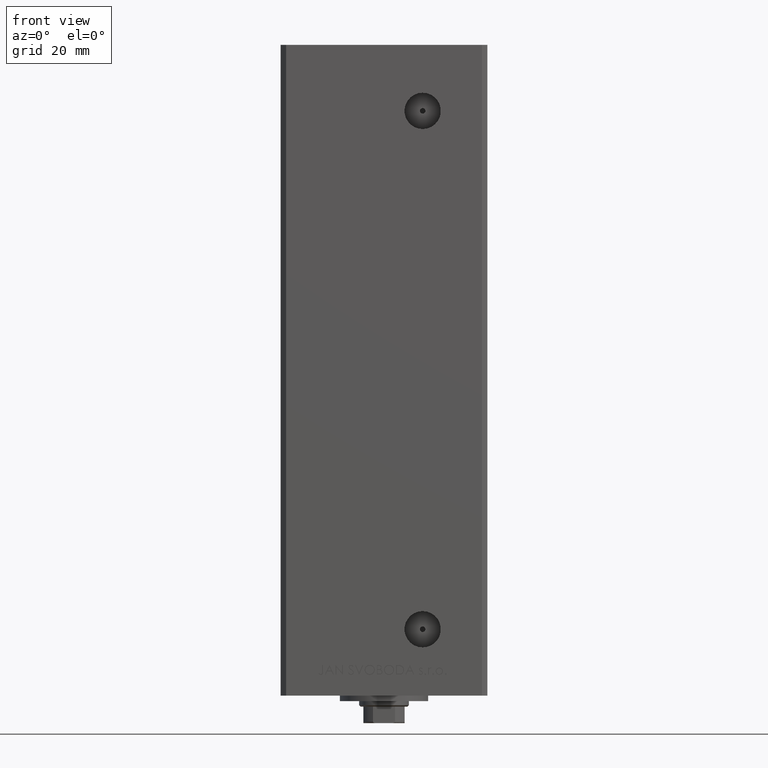
[diagram: clean part render]
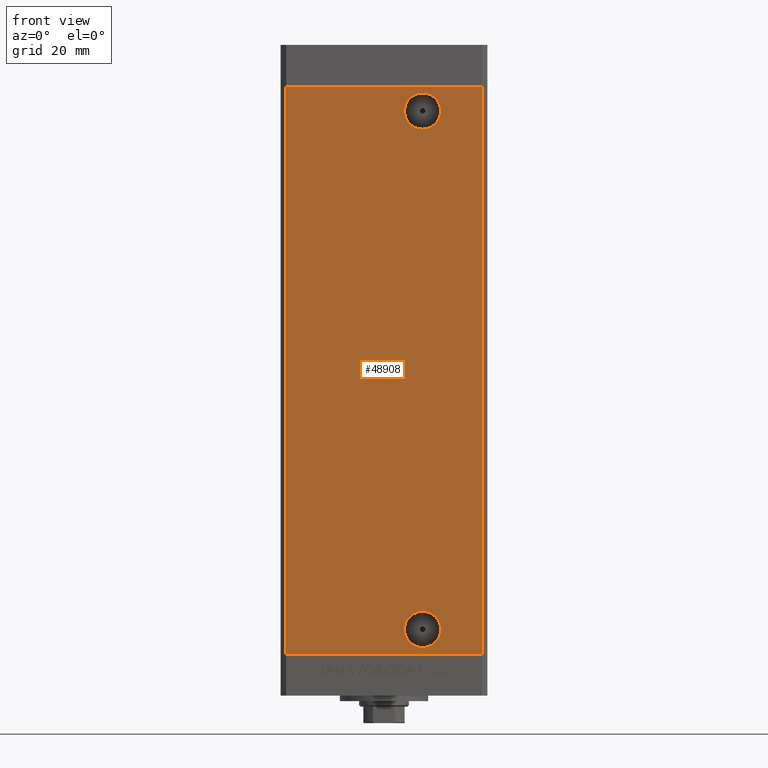
[diagram: same view with one face highlighted and labeled with its STEP entity id]
A machine part, front view. The second image highlights one B-rep face of the part: STEP entity #48908.
In plain terms, the highlighted planar face has unit normal (0, 1, 0).
Its self-contained STEP definition (entity closure, byte-faithful):
#115 = LINE ( 'NONE', #38819, #9878 ) ;
#1257 = EDGE_CURVE ( 'NONE', #29761, #33454, #115, .T. ) ;
#2340 = FACE_BOUND ( 'NONE', #48141, .T. ) ;
#3052 = EDGE_LOOP ( 'NONE', ( #33895, #46237, #29759, #42338 ) ) ;
#3498 = VECTOR ( 'NONE', #23133, 1000.000000000000000 ) ;
#4815 = VECTOR ( 'NONE', #43380, 1000.000000000000000 ) ;
#5221 = EDGE_CURVE ( 'NONE', #33454, #44925, #28622, .T. ) ;
#5364 = DIRECTION ( 'NONE',  ( 0.000000000000000000, -1.000000000000000000, 0.000000000000000000 ) ) ;
#7228 = DIRECTION ( 'NONE',  ( 0.000000000000000000, 0.000000000000000000, -1.000000000000000000 ) ) ;
#7862 = VERTEX_POINT ( 'NONE', #48352 ) ;
#8073 = EDGE_CURVE ( 'NONE', #14989, #19869, #28063, .T. ) ;
#8377 = CIRCLE ( 'NONE', #11560, 6.579999999999998295 ) ;
#9050 = AXIS2_PLACEMENT_3D ( 'NONE', #40282, #5364, #28464 ) ;
#9148 = DIRECTION ( 'NONE',  ( 0.000000000000000000, -1.000000000000000000, 0.000000000000000000 ) ) ;
#9878 = VECTOR ( 'NONE', #19728, 1000.000000000000000 ) ;
#9901 = ORIENTED_EDGE ( 'NONE', *, *, #33990, .T. ) ;
#9978 = EDGE_CURVE ( 'NONE', #29761, #39773, #15759, .T. ) ;
#10090 = EDGE_LOOP ( 'NONE', ( #43699, #19370 ) ) ;
#11560 = AXIS2_PLACEMENT_3D ( 'NONE', #32753, #9148, #40299 ) ;
#14345 = ORIENTED_EDGE ( 'NONE', *, *, #8073, .T. ) ;
#14368 = DIRECTION ( 'NONE',  ( 0.000000000000000000, -0.000000000000000000, 1.000000000000000000 ) ) ;
#14413 = AXIS2_PLACEMENT_3D ( 'NONE', #16911, #43544, #43802 ) ;
#14989 = VERTEX_POINT ( 'NONE', #48506 ) ;
#15759 = LINE ( 'NONE', #16495, #4815 ) ;
#16495 = CARTESIAN_POINT ( 'NONE',  ( -35.49999999999999289, -32.50000000000000000, 206.0000000000000000 ) ) ;
#16581 = DIRECTION ( 'NONE',  ( 1.000000000000000000, 0.000000000000000000, 0.000000000000000000 ) ) ;
#16911 = CARTESIAN_POINT ( 'NONE',  ( 13.99999999999996980, -32.50000000000000000, 196.9999999999999716 ) ) ;
#19323 = EDGE_CURVE ( 'NONE', #7862, #37778, #35514, .T. ) ;
#19370 = ORIENTED_EDGE ( 'NONE', *, *, #42970, .F. ) ;
#19728 = DIRECTION ( 'NONE',  ( -0.000000000000000000, -0.000000000000000000, -1.000000000000000000 ) ) ;
#19869 = VERTEX_POINT ( 'NONE', #42689 ) ;
#20501 = AXIS2_PLACEMENT_3D ( 'NONE', #36266, #32489, #14368 ) ;
#21180 = PLANE ( 'NONE',  #20501 ) ;
#22879 = LINE ( 'NONE', #46987, #3498 ) ;
#23063 = AXIS2_PLACEMENT_3D ( 'NONE', #26326, #41654, #7228 ) ;
#23133 = DIRECTION ( 'NONE',  ( -0.000000000000000000, -0.000000000000000000, -1.000000000000000000 ) ) ;
#26326 = CARTESIAN_POINT ( 'NONE',  ( 13.99999999999996980, -32.50000000000000000, 196.9999999999999716 ) ) ;
#28063 = CIRCLE ( 'NONE', #14413, 6.580000000000002736 ) ;
#28445 = VECTOR ( 'NONE', #16581, 1000.000000000000000 ) ;
#28464 = DIRECTION ( 'NONE',  ( 0.000000000000000000, 0.000000000000000000, -1.000000000000000000 ) ) ;
#28622 = LINE ( 'NONE', #32393, #28445 ) ;
#29759 = ORIENTED_EDGE ( 'NONE', *, *, #9978, .F. ) ;
#29761 = VERTEX_POINT ( 'NONE', #48293 ) ;
#32393 = CARTESIAN_POINT ( 'NONE',  ( -35.49999999999999289, -32.50000000000000000, 0.000000000000000000 ) ) ;
#32489 = DIRECTION ( 'NONE',  ( 0.000000000000000000, 1.000000000000000000, 0.000000000000000000 ) ) ;
#32740 = FACE_BOUND ( 'NONE', #10090, .T. ) ;
#32753 = CARTESIAN_POINT ( 'NONE',  ( 13.99999999999999112, -32.50000000000000000, 9.000000000000007105 ) ) ;
#33454 = VERTEX_POINT ( 'NONE', #39553 ) ;
#33895 = ORIENTED_EDGE ( 'NONE', *, *, #5221, .T. ) ;
#33990 = EDGE_CURVE ( 'NONE', #19869, #14989, #39902, .T. ) ;
#35514 = CIRCLE ( 'NONE', #9050, 6.579999999999998295 ) ;
#36266 = CARTESIAN_POINT ( 'NONE',  ( -35.49999999999999289, -32.50000000000000000, 206.0000000000000000 ) ) ;
#37778 = VERTEX_POINT ( 'NONE', #47097 ) ;
#38819 = CARTESIAN_POINT ( 'NONE',  ( -35.49999999999999289, -32.50000000000000000, 206.0000000000000000 ) ) ;
#38916 = CARTESIAN_POINT ( 'NONE',  ( 35.49999999999999289, -32.50000000000000000, 0.000000000000000000 ) ) ;
#39553 = CARTESIAN_POINT ( 'NONE',  ( -35.49999999999999289, -32.50000000000000000, 0.000000000000000000 ) ) ;
#39773 = VERTEX_POINT ( 'NONE', #40446 ) ;
#39902 = CIRCLE ( 'NONE', #23063, 6.580000000000002736 ) ;
#40282 = CARTESIAN_POINT ( 'NONE',  ( 13.99999999999999112, -32.50000000000000000, 9.000000000000007105 ) ) ;
#40299 = DIRECTION ( 'NONE',  ( 0.000000000000000000, 0.000000000000000000, -1.000000000000000000 ) ) ;
#40302 = EDGE_CURVE ( 'NONE', #39773, #44925, #22879, .T. ) ;
#40446 = CARTESIAN_POINT ( 'NONE',  ( 35.49999999999999289, -32.50000000000000000, 206.0000000000000000 ) ) ;
#41654 = DIRECTION ( 'NONE',  ( -0.000000000000000000, 1.000000000000000000, -0.000000000000000000 ) ) ;
#42338 = ORIENTED_EDGE ( 'NONE', *, *, #1257, .T. ) ;
#42689 = CARTESIAN_POINT ( 'NONE',  ( 13.99999999999996980, -32.50000000000000000, 203.5799999999999841 ) ) ;
#42970 = EDGE_CURVE ( 'NONE', #37778, #7862, #8377, .T. ) ;
#43380 = DIRECTION ( 'NONE',  ( 1.000000000000000000, 0.000000000000000000, 0.000000000000000000 ) ) ;
#43544 = DIRECTION ( 'NONE',  ( -0.000000000000000000, 1.000000000000000000, -0.000000000000000000 ) ) ;
#43699 = ORIENTED_EDGE ( 'NONE', *, *, #19323, .F. ) ;
#43802 = DIRECTION ( 'NONE',  ( 0.000000000000000000, 0.000000000000000000, -1.000000000000000000 ) ) ;
#44925 = VERTEX_POINT ( 'NONE', #38916 ) ;
#46237 = ORIENTED_EDGE ( 'NONE', *, *, #40302, .F. ) ;
#46987 = CARTESIAN_POINT ( 'NONE',  ( 35.49999999999999289, -32.50000000000000000, 206.0000000000000000 ) ) ;
#47097 = CARTESIAN_POINT ( 'NONE',  ( 13.99999999999999112, -32.50000000000000000, 15.58000000000000718 ) ) ;
#48141 = EDGE_LOOP ( 'NONE', ( #14345, #9901 ) ) ;
#48293 = CARTESIAN_POINT ( 'NONE',  ( -35.49999999999999289, -32.50000000000000000, 206.0000000000000000 ) ) ;
#48352 = CARTESIAN_POINT ( 'NONE',  ( 13.99999999999999112, -32.50000000000000000, 2.420000000000009699 ) ) ;
#48506 = CARTESIAN_POINT ( 'NONE',  ( 13.99999999999996980, -32.50000000000000000, 190.4199999999999875 ) ) ;
#48802 = FACE_OUTER_BOUND ( 'NONE', #3052, .T. ) ;
#48908 = ADVANCED_FACE ( 'NONE', ( #32740, #48802, #2340 ), #21180, .F. ) ;